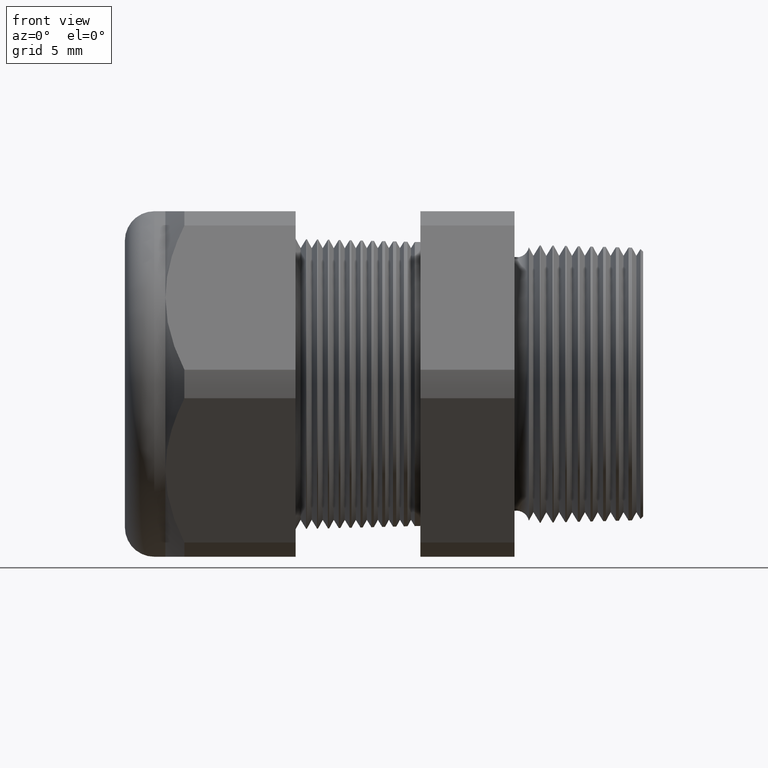
[diagram: clean part render]
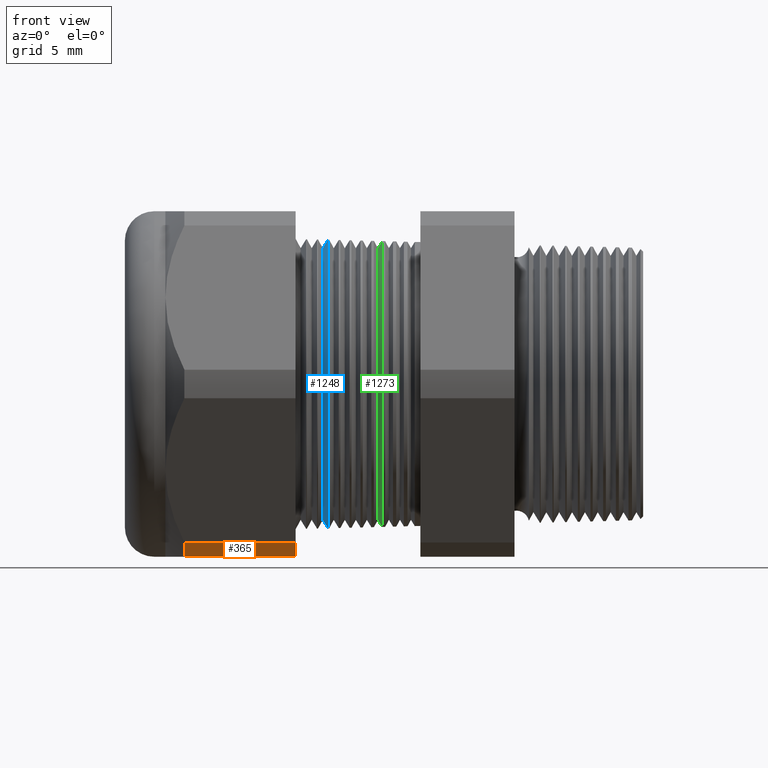
[diagram: same view with three faces highlighted in distinct colors, each labeled with its STEP entity id]
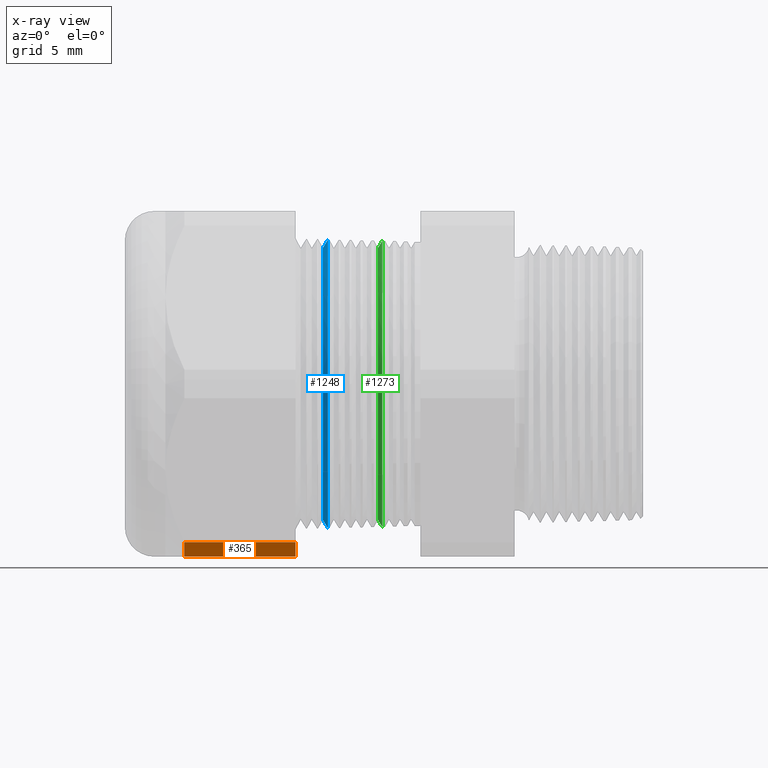
[diagram: x-ray of the same camera — body ghosted, the three highlighted faces saturated]
A machine part, front view with three faces highlighted in distinct colors.
The next image is the same camera in x-ray (body ghosted, the three faces saturated) — at least one of them is partly hidden behind the body in this view.
Their STEP definitions:

[orange] entity #365 — the highlighted cylindrical surface (partial cylindrical patch) has radius 13.2512 mm, axis along (-1, 0, 0).
#314 = VERTEX_POINT ( 'NONE', #2118 ) ;
#315 = VERTEX_POINT ( 'NONE', #2116 ) ;
#323 = VERTEX_POINT ( 'NONE', #2101 ) ;
#344 = EDGE_CURVE ( 'NONE', #314, #315, #2137, .T. ) ;
#347 = ORIENTED_EDGE ( 'NONE', *, *, #351, .T. ) ;
#348 = ORIENTED_EDGE ( 'NONE', *, *, #355, .F. ) ;
#349 = ORIENTED_EDGE ( 'NONE', *, *, #344, .F. ) ;
#350 = VERTEX_POINT ( 'NONE', #2124 ) ;
#351 = EDGE_CURVE ( 'NONE', #350, #315, #2183, .T. ) ;
#355 = EDGE_CURVE ( 'NONE', #323, #314, #2172, .T. ) ;
#359 = EDGE_CURVE ( 'NONE', #323, #350, #2155, .T. ) ;
#363 = ORIENTED_EDGE ( 'NONE', *, *, #359, .T. ) ;
#365 = ADVANCED_FACE ( 'NONE', ( #2198 ), #2195, .T. ) ;
#639 = EDGE_LOOP ( 'NONE', ( #363, #347, #349, #348 ) ) ;
#2101 = CARTESIAN_POINT ( 'NONE',  ( -0.9054330708661418900, -0.2938165587564942600, -0.4310947921287053300 ) ) ;
#2116 = CARTESIAN_POINT ( 'NONE',  ( -1.208063779527559100, -0.2264307620443830900, -0.4700000000000000300 ) ) ;
#2118 = CARTESIAN_POINT ( 'NONE',  ( -0.9054330708661418900, -0.2264307620443830900, -0.4700000000000000300 ) ) ;
#2124 = CARTESIAN_POINT ( 'NONE',  ( -1.208063779527559100, -0.2938165587564942600, -0.4310947921287053300 ) ) ;
#2129 = DIRECTION ( 'NONE',  ( -1.000000000000000000, 0.0000000000000000000, 0.0000000000000000000 ) ) ;
#2130 = VECTOR ( 'NONE', #2129, 39.37007874015748100 ) ;
#2131 = CARTESIAN_POINT ( 'NONE',  ( 0.03999999999999984800, -0.2264307620443830900, -0.4700000000000000300 ) ) ;
#2137 = LINE ( 'NONE', #2131, #2130 ) ;
#2155 = LINE ( 'NONE', #2208, #2207 ) ;
#2168 = DIRECTION ( 'NONE',  ( 0.0000000000000000000, 0.0000000000000000000, -1.000000000000000000 ) ) ;
#2169 = DIRECTION ( 'NONE',  ( 1.000000000000000000, 0.0000000000000000000, 0.0000000000000000000 ) ) ;
#2170 = CARTESIAN_POINT ( 'NONE',  ( -0.9054330708661418900, 0.0000000000000000000, 0.0000000000000000000 ) ) ;
#2171 = AXIS2_PLACEMENT_3D ( 'NONE', #2170, #2169, #2168 ) ;
#2172 = CIRCLE ( 'NONE', #2171, 0.5217000000000000500 ) ;
#2179 = DIRECTION ( 'NONE',  ( 0.0000000000000000000, 0.0000000000000000000, -1.000000000000000000 ) ) ;
#2180 = DIRECTION ( 'NONE',  ( 1.000000000000000000, 0.0000000000000000000, 0.0000000000000000000 ) ) ;
#2181 = CARTESIAN_POINT ( 'NONE',  ( -1.208063779527559100, 0.0000000000000000000, 0.0000000000000000000 ) ) ;
#2182 = AXIS2_PLACEMENT_3D ( 'NONE', #2181, #2180, #2179 ) ;
#2183 = CIRCLE ( 'NONE', #2182, 0.5217000000000000500 ) ;
#2192 = DIRECTION ( 'NONE',  ( 0.0000000000000000000, 0.0000000000000000000, 1.000000000000000000 ) ) ;
#2193 = DIRECTION ( 'NONE',  ( -1.000000000000000000, 0.0000000000000000000, 0.0000000000000000000 ) ) ;
#2194 = AXIS2_PLACEMENT_3D ( 'NONE', #2197, #2193, #2192 ) ;
#2195 = CYLINDRICAL_SURFACE ( 'NONE', #2194, 0.5217000000000000500 ) ;
#2197 = CARTESIAN_POINT ( 'NONE',  ( 0.03999999999999984800, 0.0000000000000000000, 0.0000000000000000000 ) ) ;
#2198 = FACE_OUTER_BOUND ( 'NONE', #639, .T. ) ;
#2206 = DIRECTION ( 'NONE',  ( -1.000000000000000000, 0.0000000000000000000, 0.0000000000000000000 ) ) ;
#2207 = VECTOR ( 'NONE', #2206, 39.37007874015748100 ) ;
#2208 = CARTESIAN_POINT ( 'NONE',  ( 0.03999999999999984800, -0.2938165587564942600, -0.4310947921287053300 ) ) ;

[blue] entity #1248 — the highlighted conical surface has half-angle 58.5 deg.
#83 = EDGE_CURVE ( 'NONE', #4715, #4717, #1683, .T. ) ;
#1245 = EDGE_CURVE ( 'NONE', #4701, #4705, #3797, .T. ) ;
#1248 = ADVANCED_FACE ( 'NONE', ( #3792 ), #3791, .T. ) ;
#1249 = EDGE_LOOP ( 'NONE', ( #1250, #1251, #1252, #1253 ) ) ;
#1250 = ORIENTED_EDGE ( 'NONE', *, *, #4720, .F. ) ;
#1251 = ORIENTED_EDGE ( 'NONE', *, *, #1245, .T. ) ;
#1252 = ORIENTED_EDGE ( 'NONE', *, *, #4590, .T. ) ;
#1253 = ORIENTED_EDGE ( 'NONE', *, *, #83, .T. ) ;
#1679 = DIRECTION ( 'NONE',  ( 0.0000000000000000000, 0.0000000000000000000, -1.000000000000000000 ) ) ;
#1680 = DIRECTION ( 'NONE',  ( -1.000000000000000000, 0.0000000000000000000, 0.0000000000000000000 ) ) ;
#1681 = CARTESIAN_POINT ( 'NONE',  ( -0.8175230488926574800, 0.0000000000000000000, 0.0000000000000000000 ) ) ;
#1682 = AXIS2_PLACEMENT_3D ( 'NONE', #1681, #1680, #1679 ) ;
#1683 = CIRCLE ( 'NONE', #1682, 0.3926979950594574100 ) ;
#3786 = DIRECTION ( 'NONE',  ( 0.0000000000000000000, 0.0000000000000000000, -1.000000000000000000 ) ) ;
#3787 = DIRECTION ( 'NONE',  ( 1.000000000000000000, 0.0000000000000000000, 0.0000000000000000000 ) ) ;
#3788 = CARTESIAN_POINT ( 'NONE',  ( -0.8316586839320377900, 0.0000000000000000000, 0.0000000000000000000 ) ) ;
#3789 = AXIS2_PLACEMENT_3D ( 'NONE', #3788, #3787, #3786 ) ;
#3791 = CONICAL_SURFACE ( 'NONE', #3789, 0.3696307351718083900, 1.021017612416699200 ) ;
#3792 = FACE_OUTER_BOUND ( 'NONE', #1249, .T. ) ;
#3793 = DIRECTION ( 'NONE',  ( 0.0000000000000000000, 0.0000000000000000000, -1.000000000000000000 ) ) ;
#3794 = DIRECTION ( 'NONE',  ( 1.000000000000000000, 0.0000000000000000000, 0.0000000000000000000 ) ) ;
#3795 = CARTESIAN_POINT ( 'NONE',  ( -0.8316586839320377900, 0.0000000000000000000, 0.0000000000000000000 ) ) ;
#3796 = AXIS2_PLACEMENT_3D ( 'NONE', #3795, #3794, #3793 ) ;
#3797 = CIRCLE ( 'NONE', #3796, 0.3696307351718083900 ) ;
#4163 = DIRECTION ( 'NONE',  ( 0.5224985647159348100, 0.0000000000000000000, -0.8526401643541007300 ) ) ;
#4164 = VECTOR ( 'NONE', #4163, 39.37007874015748900 ) ;
#4165 = CARTESIAN_POINT ( 'NONE',  ( -0.8316586839320377900, 0.0000000000000000000, -0.3696307351718083900 ) ) ;
#4166 = LINE ( 'NONE', #4165, #4164 ) ;
#4221 = CARTESIAN_POINT ( 'NONE',  ( -0.8316586839320377900, 4.672253604444746000E-017, -0.3696307351718083900 ) ) ;
#4232 = CARTESIAN_POINT ( 'NONE',  ( -0.8316586839320377900, 0.0000000000000000000, 0.3696307351718083900 ) ) ;
#4254 = DIRECTION ( 'NONE',  ( 0.5224985647159348100, 1.044183048100722500E-016, 0.8526401643541007300 ) ) ;
#4255 = VECTOR ( 'NONE', #4254, 39.37007874015748900 ) ;
#4256 = CARTESIAN_POINT ( 'NONE',  ( -0.8316586839320377900, 4.526670966946381200E-017, 0.3696307351718083900 ) ) ;
#4257 = LINE ( 'NONE', #4256, #4255 ) ;
#4263 = CARTESIAN_POINT ( 'NONE',  ( -0.8175230488926574800, 0.0000000000000000000, 0.3926979950594575200 ) ) ;
#4264 = CARTESIAN_POINT ( 'NONE',  ( -0.8175230488926574800, 4.809163426811477500E-017, -0.3926979950594575200 ) ) ;
#4590 = EDGE_CURVE ( 'NONE', #4705, #4715, #4166, .T. ) ;
#4701 = VERTEX_POINT ( 'NONE', #4232 ) ;
#4705 = VERTEX_POINT ( 'NONE', #4221 ) ;
#4715 = VERTEX_POINT ( 'NONE', #4264 ) ;
#4717 = VERTEX_POINT ( 'NONE', #4263 ) ;
#4720 = EDGE_CURVE ( 'NONE', #4701, #4717, #4257, .T. ) ;

[green] entity #1273 — the highlighted conical surface has half-angle 58.5 deg.
#69 = EDGE_CURVE ( 'NONE', #99, #76, #1643, .T. ) ;
#73 = EDGE_CURVE ( 'NONE', #102, #87, #1638, .T. ) ;
#76 = VERTEX_POINT ( 'NONE', #1629 ) ;
#87 = VERTEX_POINT ( 'NONE', #1676 ) ;
#99 = VERTEX_POINT ( 'NONE', #1654 ) ;
#102 = VERTEX_POINT ( 'NONE', #1711 ) ;
#572 = EDGE_CURVE ( 'NONE', #87, #76, #2648, .T. ) ;
#606 = EDGE_LOOP ( 'NONE', ( #1327, #1328, #1329, #1330 ) ) ;
#1273 = ADVANCED_FACE ( 'NONE', ( #3825 ), #3820, .T. ) ;
#1327 = ORIENTED_EDGE ( 'NONE', *, *, #69, .F. ) ;
#1328 = ORIENTED_EDGE ( 'NONE', *, *, #1347, .T. ) ;
#1329 = ORIENTED_EDGE ( 'NONE', *, *, #73, .T. ) ;
#1330 = ORIENTED_EDGE ( 'NONE', *, *, #572, .T. ) ;
#1347 = EDGE_CURVE ( 'NONE', #99, #102, #3912, .T. ) ;
#1629 = CARTESIAN_POINT ( 'NONE',  ( -0.6698920471679515900, 0.0000000000000000000, 0.3888321412271149000 ) ) ;
#1635 = DIRECTION ( 'NONE',  ( 0.5224985647159348100, 0.0000000000000000000, -0.8526401643541007300 ) ) ;
#1636 = VECTOR ( 'NONE', #1635, 39.37007874015748900 ) ;
#1637 = CARTESIAN_POINT ( 'NONE',  ( -0.6816586839320378800, 0.0000000000000000000, -0.3696307351718083900 ) ) ;
#1638 = LINE ( 'NONE', #1637, #1636 ) ;
#1640 = DIRECTION ( 'NONE',  ( 0.5224985647159348100, 1.044183048100722500E-016, 0.8526401643541007300 ) ) ;
#1641 = VECTOR ( 'NONE', #1640, 39.37007874015748900 ) ;
#1642 = CARTESIAN_POINT ( 'NONE',  ( -0.6816586839320378800, 4.526670966946381200E-017, 0.3696307351718083900 ) ) ;
#1643 = LINE ( 'NONE', #1642, #1641 ) ;
#1654 = CARTESIAN_POINT ( 'NONE',  ( -0.6816586839320378800, 0.0000000000000000000, 0.3696307351718083900 ) ) ;
#1676 = CARTESIAN_POINT ( 'NONE',  ( -0.6698920471679515900, 4.761820371593978500E-017, -0.3888321412271149000 ) ) ;
#1711 = CARTESIAN_POINT ( 'NONE',  ( -0.6816586839320378800, 4.647855336083582300E-017, -0.3696307351718083900 ) ) ;
#2644 = DIRECTION ( 'NONE',  ( 0.0000000000000000000, 0.0000000000000000000, -1.000000000000000000 ) ) ;
#2645 = DIRECTION ( 'NONE',  ( -1.000000000000000000, 0.0000000000000000000, 0.0000000000000000000 ) ) ;
#2646 = CARTESIAN_POINT ( 'NONE',  ( -0.6698920471679515900, 0.0000000000000000000, 0.0000000000000000000 ) ) ;
#2647 = AXIS2_PLACEMENT_3D ( 'NONE', #2646, #2645, #2644 ) ;
#2648 = CIRCLE ( 'NONE', #2647, 0.3888321412271148500 ) ;
#3815 = DIRECTION ( 'NONE',  ( 0.0000000000000000000, 0.0000000000000000000, -1.000000000000000000 ) ) ;
#3816 = DIRECTION ( 'NONE',  ( 1.000000000000000000, 0.0000000000000000000, 0.0000000000000000000 ) ) ;
#3817 = CARTESIAN_POINT ( 'NONE',  ( -0.6816586839320378800, 0.0000000000000000000, 0.0000000000000000000 ) ) ;
#3818 = AXIS2_PLACEMENT_3D ( 'NONE', #3817, #3816, #3815 ) ;
#3820 = CONICAL_SURFACE ( 'NONE', #3818, 0.3696307351718083900, 1.021017612416699200 ) ;
#3825 = FACE_OUTER_BOUND ( 'NONE', #606, .T. ) ;
#3909 = DIRECTION ( 'NONE',  ( 0.0000000000000000000, 0.0000000000000000000, -1.000000000000000000 ) ) ;
#3910 = DIRECTION ( 'NONE',  ( 1.000000000000000000, 0.0000000000000000000, 0.0000000000000000000 ) ) ;
#3911 = AXIS2_PLACEMENT_3D ( 'NONE', #3916, #3910, #3909 ) ;
#3912 = CIRCLE ( 'NONE', #3911, 0.3696307351718083900 ) ;
#3916 = CARTESIAN_POINT ( 'NONE',  ( -0.6816586839320378800, 0.0000000000000000000, 0.0000000000000000000 ) ) ;